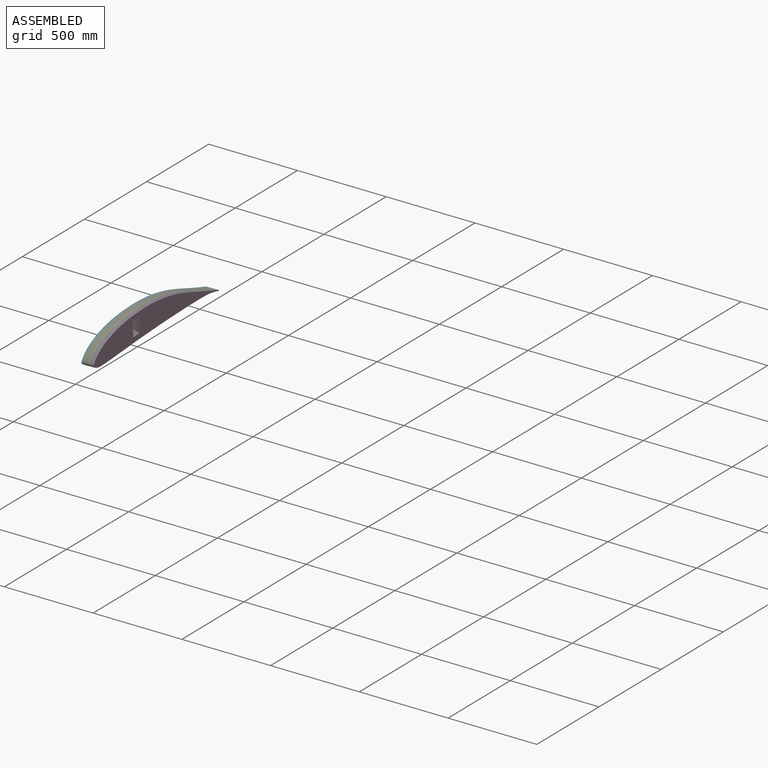
[diagram: assembled view]
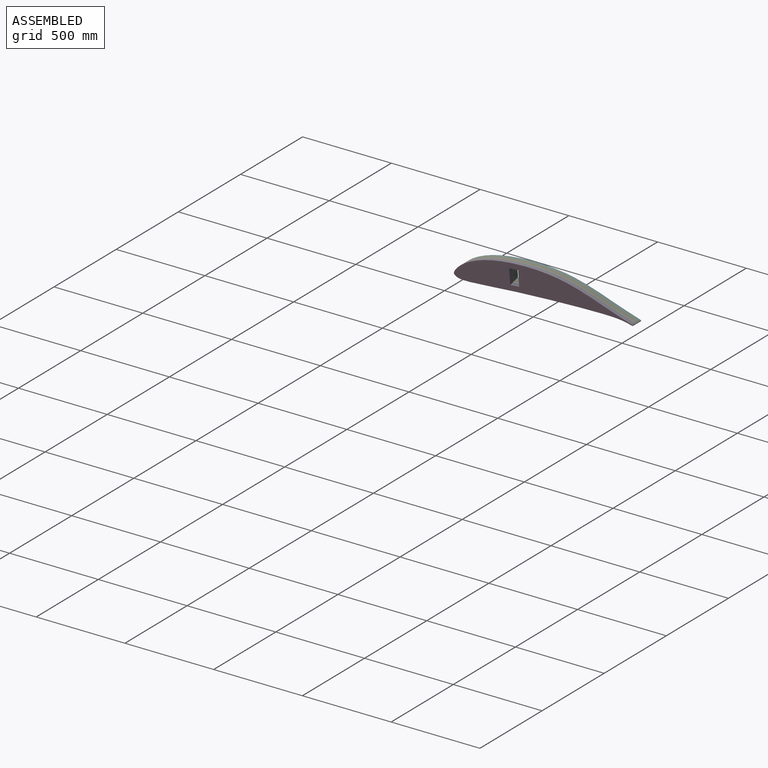
[diagram: assembled view, second angle]
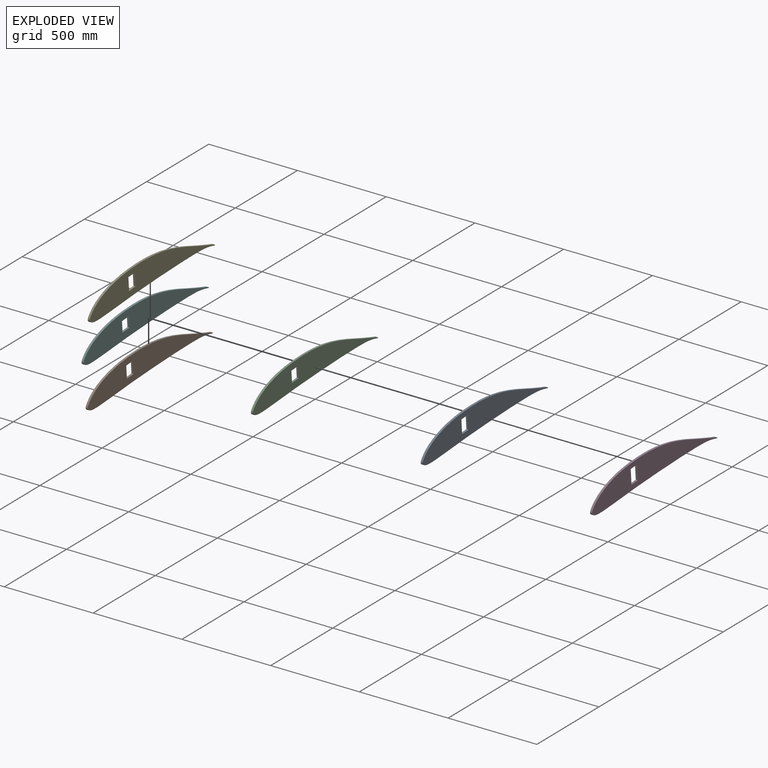
[diagram: exploded view]
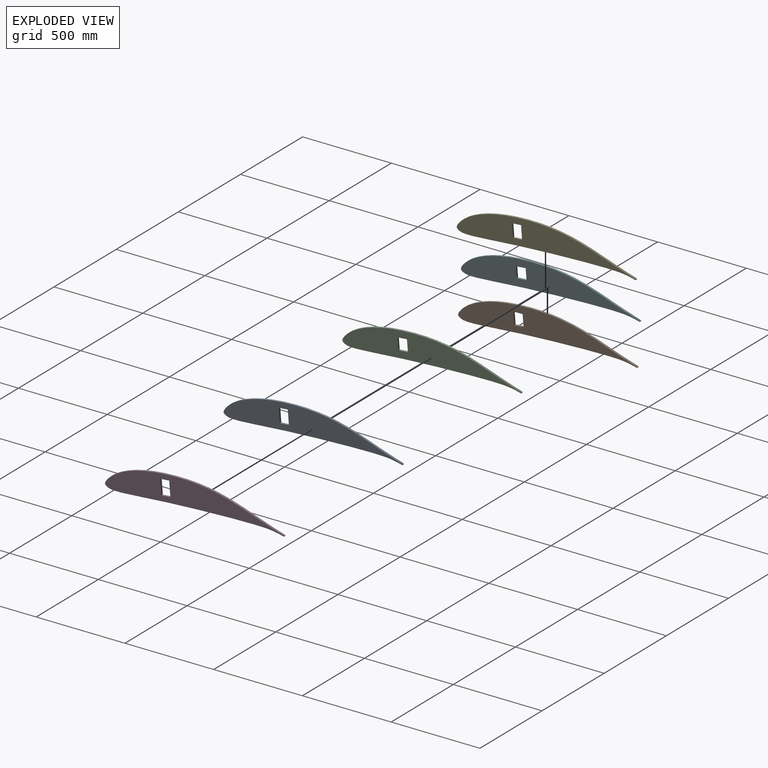
[diagram: exploded view, second angle]
ASSEMBLY  parts=6 mates=5
PART A: 7 faces, bbox 8000x1008.4x163.3 mm
  f0: bspline ~8000x59.36mm, area 587.1mm2, adj f1,f3,f4,f5
  f1: bspline ~8000x99.81mm, area 893.7mm2, adj f0,f2,f4,f5
  f2: bspline ~8000x59.36mm, area 587.1mm2, adj f1,f3,f4,f5
  f3: bspline ~8000x99.81mm, area 893.7mm2, adj f0,f2,f4,f5
  f4: plane 1008.35x163.29mm, normal (1,0,0), area 92473.3mm2, adj f0,f1,f2,f3,f6
  f5: plane 1008.35x163.29mm, normal (-1,0,0), area 92469.8mm2, adj f0,f1,f2,f3,f6
  f6: extruded ~981.52x163.17mm, area 24061.7mm2, adj f4,f5
PART B: 7 faces, bbox 8000x1008.4x163.3 mm
  f0: bspline ~8000x59.36mm, area 611.2mm2, adj f1,f3,f4,f5
  f1: bspline ~8000x99.81mm, area 792.4mm2, adj f0,f2,f4,f5
  f2: bspline ~8000x59.36mm, area 611.2mm2, adj f1,f3,f4,f5
  f3: bspline ~8000x99.81mm, area 792.4mm2, adj f0,f2,f4,f5
  f4: plane 1008.35x163.29mm, normal (1,0,0), area 92778.1mm2, adj f0,f1,f2,f3,f6
  f5: plane 1008.35x163.29mm, normal (-1,0,0), area 92775.9mm2, adj f0,f1,f2,f3,f6
  f6: extruded ~981.52x163.17mm, area 24061.7mm2, adj f4,f5
PART C: 7 faces, bbox 8000x1008.4x163.3 mm
  f0: bspline ~8000x59.36mm, area 626.2mm2, adj f1,f3,f4,f5
  f1: bspline ~8000x99.81mm, area 744.9mm2, adj f0,f2,f4,f5
  f2: bspline ~8000x59.36mm, area 626.2mm2, adj f1,f3,f4,f5
  f3: bspline ~8000x99.81mm, area 744.9mm2, adj f0,f2,f4,f5
  f4: plane 1008.35x163.29mm, normal (1,0,0), area 92913.5mm2, adj f0,f1,f2,f3,f6
  f5: plane 1008.35x163.29mm, normal (-1,0,0), area 92910.9mm2, adj f0,f1,f2,f3,f6
  f6: extruded ~981.52x163.17mm, area 24061.7mm2, adj f4,f5
PART D: 7 faces, bbox 8000x1008.4x163.3 mm
  f0: bspline ~8000x59.36mm, area 584.2mm2, adj f1,f3,f4,f5
  f1: bspline ~8000x99.81mm, area 954mm2, adj f0,f2,f4,f5
  f2: bspline ~8000x59.36mm, area 584.2mm2, adj f1,f3,f4,f5
  f3: bspline ~8000x99.81mm, area 954mm2, adj f0,f2,f4,f5
  f4: plane 1008.35x163.29mm, normal (1,0,0), area 92227.3mm2, adj f0,f1,f2,f3,f6
  f5: plane 1008.35x163.29mm, normal (-1,0,0), area 92222.1mm2, adj f0,f1,f2,f3,f6
  f6: extruded ~981.52x163.17mm, area 24061.7mm2, adj f4,f5
PART E: 7 faces, bbox 8000x1008.4x163.3 mm
  f0: bspline ~8000x59.36mm, area 597.1mm2, adj f1,f3,f4,f5
  f1: bspline ~8000x99.81mm, area 840.9mm2, adj f0,f2,f4,f5
  f2: bspline ~8000x59.36mm, area 597.1mm2, adj f1,f3,f4,f5
  f3: bspline ~8000x99.81mm, area 840.9mm2, adj f0,f2,f4,f5
  f4: plane 1008.35x163.29mm, normal (1,0,0), area 92643.4mm2, adj f0,f1,f2,f3,f6
  f5: plane 1008.35x163.29mm, normal (-1,0,0), area 92640.8mm2, adj f0,f1,f2,f3,f6
  f6: extruded ~981.52x163.17mm, area 24061.7mm2, adj f4,f5
PART F: 7 faces, bbox 8000x1008.4x163.3 mm
  f0: bspline ~8000x59.36mm, area 639.1mm2, adj f1,f3,f4,f5
  f1: bspline ~8000x99.81mm, area 695mm2, adj f0,f2,f4,f5
  f2: bspline ~8000x59.36mm, area 639.1mm2, adj f1,f3,f4,f5
  f3: bspline ~8000x99.81mm, area 695mm2, adj f0,f2,f4,f5
  f4: plane 1008.35x163.29mm, normal (1,0,0), area 93082.3mm2, adj f0,f1,f2,f3,f6
  f5: plane 1008.35x163.29mm, normal (-1,0,0), area 93079mm2, adj f0,f1,f2,f3,f6
  f6: extruded ~981.52x163.17mm, area 24061.7mm2, adj f4,f5
PLACE A t=(-3741.29,-1268.93,-79.47)mm
PLACE B t=(-5090.29,-1269.25,-79.73)mm
PLACE C t=(-5764.79,-1269.42,-79.85)mm
PLACE D t=(-3066.79,-1268.86,-79.33)mm
PLACE E t=(-4415.79,-1269.07,-79.6)mm
PLACE F t=(-6439.29,-1269.56,-79.98)mm
MATE fastened A.f4 <-> D.f5  axis (1,0,0) through (-731.79,-1331.03,-29.52)mm
MATE fastened C.f4 <-> B.f5  axis (1,0,0) through (-766.29,-1331.9,-29.85)mm
MATE fastened F.f4 <-> C.f5  axis (1,0,0) through (-777.79,-1332.19,-29.96)mm
MATE fastened B.f4 <-> E.f5  axis (1,0,0) through (-754.79,-1331.61,-29.74)mm
MATE fastened E.f4 <-> A.f5  axis (1,0,0) through (-743.29,-1331.32,-29.63)mm
